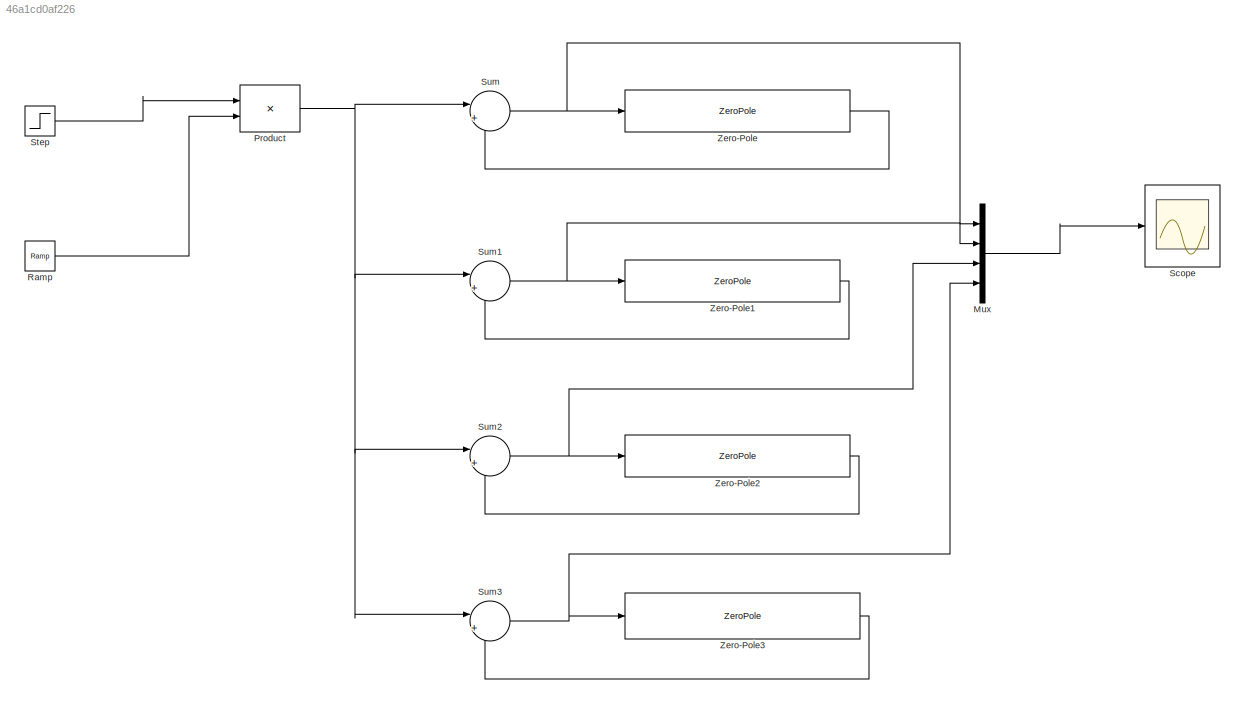
MODEL slx_46a1cd0af226
KIND model
CONFIG AbsTol = auto
CONFIG EnableMultiTasking = off
CONFIG FixedStep = auto
CONFIG MaxStep = auto
CONFIG MinStep = auto
CONFIG RelTol = 1e-3
CONFIG SampleTimeConstraint = Unconstrained
CONFIG Solver = VariableStepAuto
CONFIG SolverName = VariableStepAuto
CONFIG StartTime = 0.0
CONFIG StopTime = 10.0
BLOCK [Mux] Mux
  DisplayOption = bar
  Ports = [4, 1]
BLOCK [Product] Product
  InputSameDT = off
  OutDataTypeStr = Inherit: Inherit via internal rule
  Ports = [2, 1]
  RndMeth = Floor
  SaturateOnIntegerOverflow = off
BLOCK [Reference] Ramp  REF=simulink/Sources/Ramp
  Ports = [0, 1]
  SourceBlock = simulink/Sources/Ramp
  SourceProductBaseCode = SL
  SourceProductName = Simulink
  SourceType = Ramp
BLOCK [Scope] Scope
  Floating = off
  NumInputPorts = 1
  Ports = [1]
  ScopeSpecificationString = Simulink.scopes.TimeScopeBlockCfg('CurrentConfiguration', extmgr.ConfigurationSet(extmgr.Configuration('Core','General UI',true),extmgr.Configuration('Core','Source UI',true),extmgr.Configuration('Sources','WiredSimulink',true),extmgr.Configuration('Visuals','Time Domain',true,'SerializedDisplays',{struct('MinYLimReal','-8.84578','MaxYLimReal','51.71625','YLabelReal','','MinYLimMag','0.00000','Max...<+1373ch>
BLOCK [Step] Step
  After = 5
  SampleTime = 0
BLOCK [Sum] Sum
  IconShape = round
  InputSameDT = off
  Inputs = |+-
  OutDataTypeStr = Inherit: Inherit via internal rule
  Ports = [2, 1]
  SaturateOnIntegerOverflow = off
BLOCK [Sum] Sum1
  IconShape = round
  InputSameDT = off
  Inputs = |+-
  OutDataTypeStr = Inherit: Inherit via internal rule
  Ports = [2, 1]
  SaturateOnIntegerOverflow = off
BLOCK [Sum] Sum2
  IconShape = round
  InputSameDT = off
  Inputs = |+-
  OutDataTypeStr = Inherit: Inherit via internal rule
  Ports = [2, 1]
  SaturateOnIntegerOverflow = off
BLOCK [Sum] Sum3
  IconShape = round
  InputSameDT = off
  Inputs = |+-
  OutDataTypeStr = Inherit: Inherit via internal rule
  Ports = [2, 1]
  SaturateOnIntegerOverflow = off
BLOCK [ZeroPole] Zero-Pole
  Gain = [50]
  Poles = [-4 -7 -9 -12]
  Zeros = [-6]
BLOCK [ZeroPole] Zero-Pole1
  Gain = [500]
  Poles = [-4 -7 -9 -12]
  Zeros = [-6]
BLOCK [ZeroPole] Zero-Pole2
  Gain = [1000]
  Poles = [-4 -7 -9 -12]
  Zeros = [-6]
BLOCK [ZeroPole] Zero-Pole3
  Gain = [5000]
  Poles = [-4 -7 -9 -12]
  Zeros = [-6]
LINE Mux:1 -> Scope:1
NET Product:1 -> Sum1:1, Sum2:1, Sum3:1, Sum:1
LINE Ramp:1 -> Product:2
LINE Step:1 -> Product:1
NET Sum1:1 -> Mux:2, Zero-Pole1:1
NET Sum2:1 -> Mux:3, Zero-Pole2:1
NET Sum3:1 -> Mux:4, Zero-Pole3:1
NET Sum:1 -> Mux:1, Zero-Pole:1
LINE Zero-Pole1:1 -> Sum1:2
LINE Zero-Pole2:1 -> Sum2:2
LINE Zero-Pole3:1 -> Sum3:2
LINE Zero-Pole:1 -> Sum:2
note: NET lines group one-source signal fan-out (src -> all destinations, sorted); 1:1 wires keep LINE
